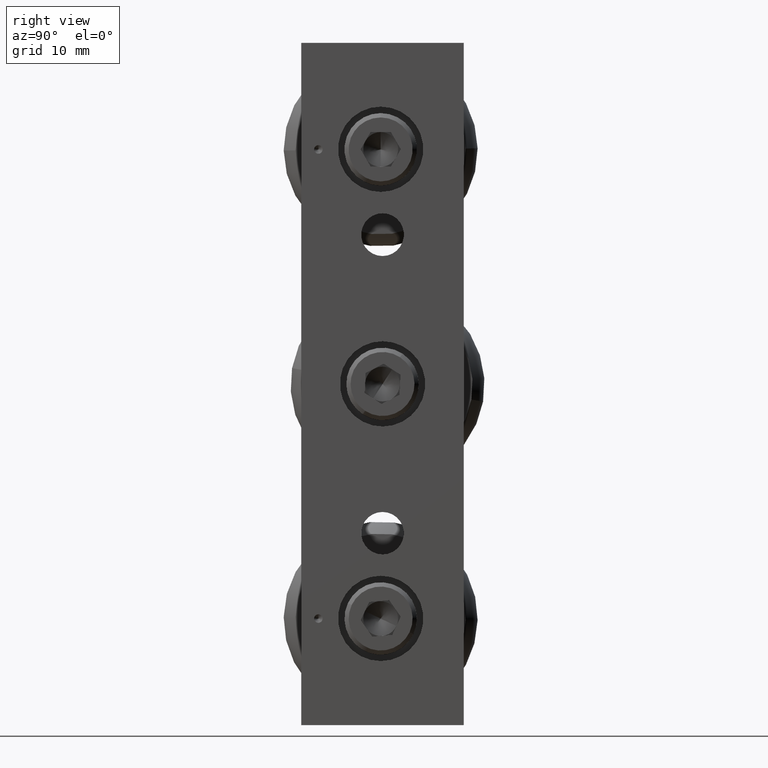
[diagram: clean part render]
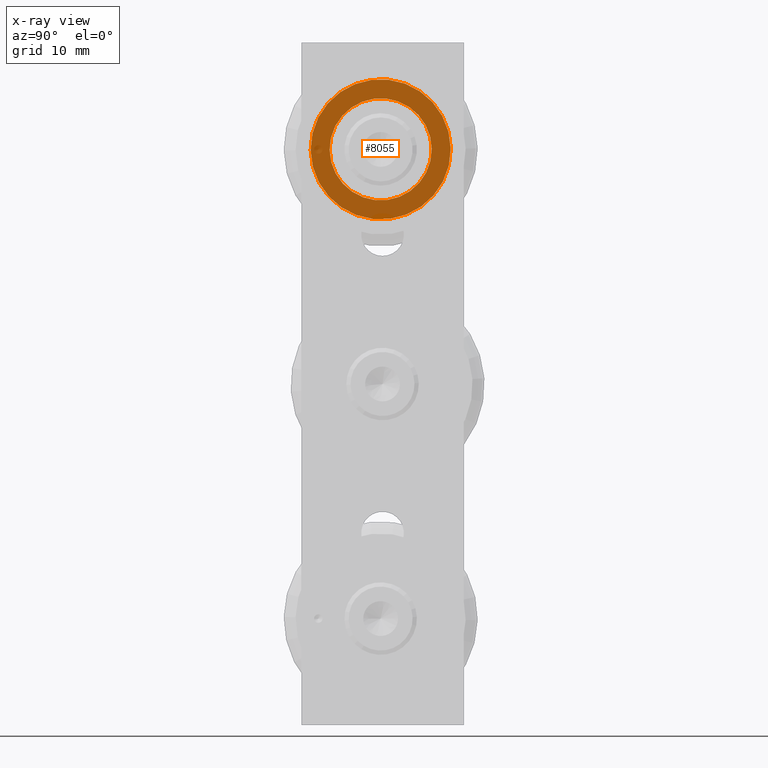
[diagram: x-ray — body ghosted, one internal face saturated and labeled with its STEP entity id]
A machine part, right view, then the same camera in x-ray: the body is ghosted and one INTERNAL B-rep face — a face not visible from any outside direction — is saturated and labeled: STEP entity #8055.
In plain terms, the highlighted planar face has unit normal (1, 0, 0).
Its self-contained STEP definition (entity closure, byte-faithful):
#1350 = AXIS2_PLACEMENT_3D ( 'NONE', #36897, #31433, #52311 ) ;
#1855 = DIRECTION ( 'NONE',  ( 6.107705477455767296E-19, -0.9999391904923110586, -0.01102793351364159645 ) ) ;
#3074 = CARTESIAN_POINT ( 'NONE',  ( 0.5018208658675762379, -0.008661417322834277788, -1.279527559055118280 ) ) ;
#3877 = DIRECTION ( 'NONE',  ( 0.000000000000000000, -0.9999391904923112806, -0.01102793351364175431 ) ) ;
#4495 = DIRECTION ( 'NONE',  ( 1.000000000000000000, 4.122974739858164500E-35, 5.538395266801810043E-17 ) ) ;
#5015 = EDGE_CURVE ( 'NONE', #5774, #45416, #62649, .T. ) ;
#5056 = PLANE ( 'NONE',  #42777 ) ;
#5774 = VERTEX_POINT ( 'NONE', #36574 ) ;
#6235 = DIRECTION ( 'NONE',  ( 1.000000000000000000, 4.122974739858164500E-35, 5.538395266801810043E-17 ) ) ;
#8055 = ADVANCED_FACE ( 'NONE', ( #14945, #25157 ), #5056, .F. ) ;
#10976 = CIRCLE ( 'NONE', #57075, 0.3232775590551181244 ) ;
#14945 = FACE_OUTER_BOUND ( 'NONE', #36812, .T. ) ;
#17006 = VERTEX_POINT ( 'NONE', #56316 ) ;
#21649 = ORIENTED_EDGE ( 'NONE', *, *, #60691, .F. ) ;
#22548 = DIRECTION ( 'NONE',  ( 0.000000000000000000, -0.9999391904923112806, -0.01102793351364175431 ) ) ;
#23119 = ORIENTED_EDGE ( 'NONE', *, *, #5015, .T. ) ;
#23323 = ORIENTED_EDGE ( 'NONE', *, *, #49040, .F. ) ;
#23702 = CARTESIAN_POINT ( 'NONE',  ( 0.5018208658675762379, -0.3319193180287394740, -1.283092642482830392 ) ) ;
#24736 = AXIS2_PLACEMENT_3D ( 'NONE', #26999, #6235, #31797 ) ;
#25157 = FACE_BOUND ( 'NONE', #46467, .T. ) ;
#26999 = CARTESIAN_POINT ( 'NONE',  ( 0.5018208658675762379, -0.008661417322834277788, -1.279527559055118280 ) ) ;
#28501 = CIRCLE ( 'NONE', #60281, 0.3232775590551181244 ) ;
#30038 = EDGE_CURVE ( 'NONE', #45416, #5774, #59532, .T. ) ;
#31433 = DIRECTION ( 'NONE',  ( 1.000000000000000000, 4.122974739858164500E-35, 5.538395266801810043E-17 ) ) ;
#31797 = DIRECTION ( 'NONE',  ( 0.000000000000000000, -0.9999391904923111696, -0.01102793351364115063 ) ) ;
#36574 = CARTESIAN_POINT ( 'NONE',  ( 0.5018208658675762379, 0.2271018042149936245, -1.276927419809849695 ) ) ;
#36812 = EDGE_LOOP ( 'NONE', ( #21649, #23323 ) ) ;
#36897 = CARTESIAN_POINT ( 'NONE',  ( 0.5018208658675762379, -0.008661417322834277788, -1.279527559055118280 ) ) ;
#38696 = CARTESIAN_POINT ( 'NONE',  ( 0.5018208658675762379, -0.008661417322834277788, -1.279527559055118280 ) ) ;
#42777 = AXIS2_PLACEMENT_3D ( 'NONE', #46010, #51164, #1855 ) ;
#45416 = VERTEX_POINT ( 'NONE', #51701 ) ;
#46010 = CARTESIAN_POINT ( 'NONE',  ( 0.5018208658675762379, -0.008661417322834277788, -1.279527559055118280 ) ) ;
#46467 = EDGE_LOOP ( 'NONE', ( #23119, #48186 ) ) ;
#48186 = ORIENTED_EDGE ( 'NONE', *, *, #30038, .T. ) ;
#49040 = EDGE_CURVE ( 'NONE', #62689, #17006, #28501, .T. ) ;
#51164 = DIRECTION ( 'NONE',  ( 1.000000000000000000, 9.629649721936183542E-35, 5.538395266801810043E-17 ) ) ;
#51701 = CARTESIAN_POINT ( 'NONE',  ( 0.5018208658675762379, -0.2444246388606622356, -1.282127698300386642 ) ) ;
#52311 = DIRECTION ( 'NONE',  ( 0.000000000000000000, -0.9999391904923111696, -0.01102793351364115063 ) ) ;
#55610 = DIRECTION ( 'NONE',  ( 1.000000000000000000, 4.122974739858164500E-35, 5.538395266801810043E-17 ) ) ;
#56316 = CARTESIAN_POINT ( 'NONE',  ( 0.5018208658675762379, 0.3145964833830708907, -1.275962475627405945 ) ) ;
#57075 = AXIS2_PLACEMENT_3D ( 'NONE', #38696, #4495, #3877 ) ;
#59532 = CIRCLE ( 'NONE', #24736, 0.2357775590551181577 ) ;
#60281 = AXIS2_PLACEMENT_3D ( 'NONE', #3074, #55610, #22548 ) ;
#60691 = EDGE_CURVE ( 'NONE', #17006, #62689, #10976, .T. ) ;
#62649 = CIRCLE ( 'NONE', #1350, 0.2357775590551181577 ) ;
#62689 = VERTEX_POINT ( 'NONE', #23702 ) ;